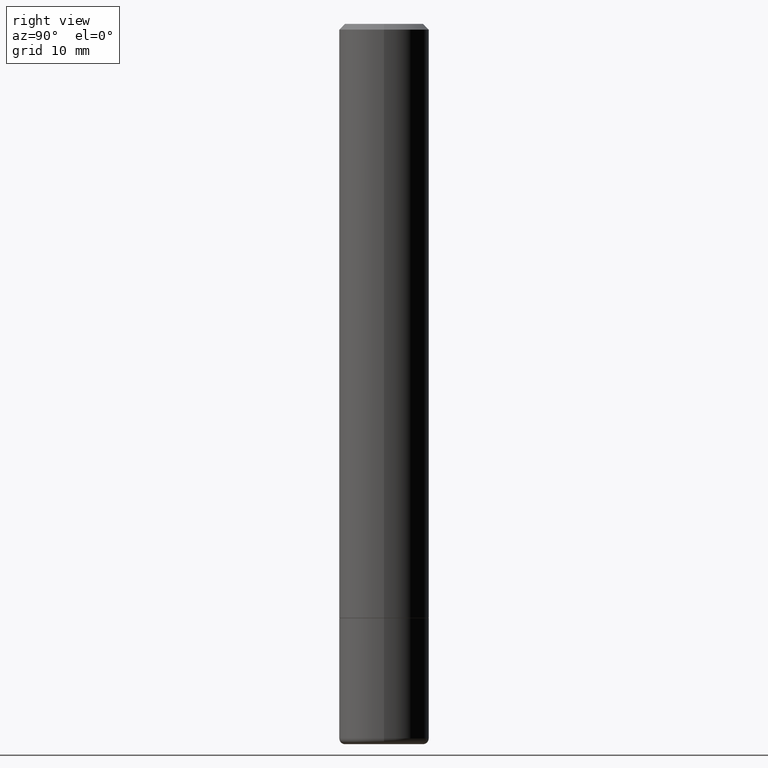
[diagram: clean part render]
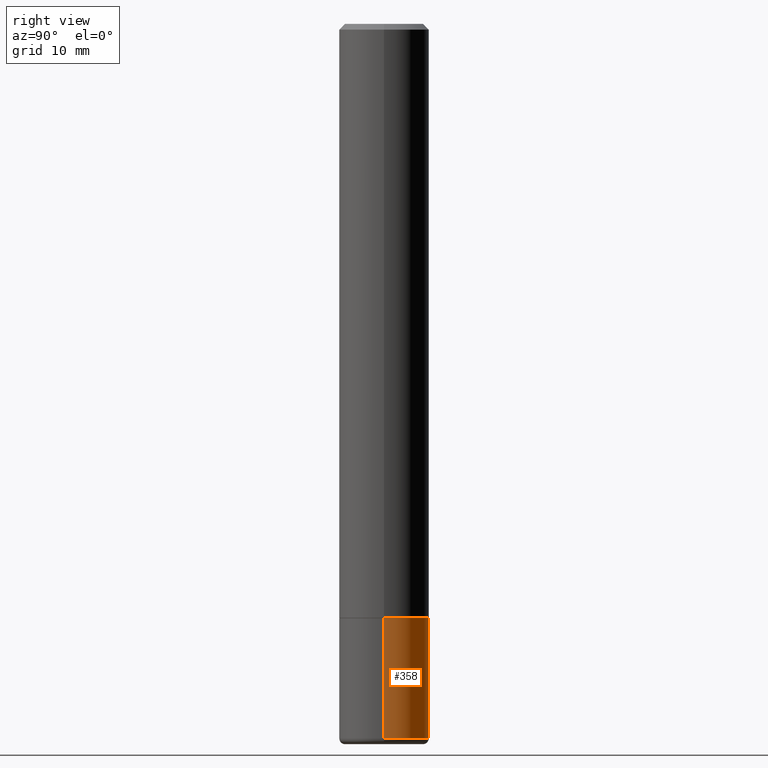
[diagram: same view with one face highlighted and labeled with its STEP entity id]
A machine part, right view. The second image highlights one B-rep face of the part: STEP entity #358.
In plain terms, the highlighted cylindrical surface (partial cylindrical patch) has radius 3.9687 mm, axis along (-0, 0, 1).
Its self-contained STEP definition (entity closure, byte-faithful):
#5 = ORIENTED_EDGE ( 'NONE', *, *, #136, .F. ) ;
#11 = VERTEX_POINT ( 'NONE', #47 ) ;
#44 = ORIENTED_EDGE ( 'NONE', *, *, #258, .F. ) ;
#47 = CARTESIAN_POINT ( 'NONE',  ( 0.1562499999999996392, -8.292268179752465385E-15, -2.062500000000000000 ) ) ;
#65 = DIRECTION ( 'NONE',  ( -2.445468806185136877E-29, 3.491481338843145188E-15, 1.000000000000000000 ) ) ;
#77 = CARTESIAN_POINT ( 'NONE',  ( -0.1562499999999996392, -6.819805295671450729E-15, -2.062500000000000000 ) ) ;
#81 = DIRECTION ( 'NONE',  ( 1.000000000000000000, -6.982962677686267499E-15, 4.876176775795936914E-29 ) ) ;
#84 = EDGE_CURVE ( 'NONE', #183, #317, #363, .T. ) ;
#95 = VERTEX_POINT ( 'NONE', #253 ) ;
#100 = EDGE_LOOP ( 'NONE', ( #244, #353, #5, #44 ) ) ;
#112 = CIRCLE ( 'NONE', #174, 0.1562499999999996392 ) ;
#118 = EDGE_CURVE ( 'NONE', #95, #183, #221, .T. ) ;
#121 = DIRECTION ( 'NONE',  ( -2.445468806185136597E-29, 3.491481338843145583E-15, 1.000000000000000000 ) ) ;
#136 = EDGE_CURVE ( 'NONE', #11, #317, #112, .T. ) ;
#141 = CARTESIAN_POINT ( 'NONE',  ( -0.1562499999999995282, -6.819805295671450729E-15, -2.480000761538716958 ) ) ;
#153 = CARTESIAN_POINT ( 'NONE',  ( 0.000000000000000000, 0.000000000000000000, 0.000000000000000000 ) ) ;
#174 = AXIS2_PLACEMENT_3D ( 'NONE', #251, #246, #290 ) ;
#183 = VERTEX_POINT ( 'NONE', #141 ) ;
#187 = FACE_OUTER_BOUND ( 'NONE', #100, .T. ) ;
#211 = DIRECTION ( 'NONE',  ( 1.000000000000000000, -6.982962677686265133E-15, 0.000000000000000000 ) ) ;
#221 = CIRCLE ( 'NONE', #291, 0.1562499999999995282 ) ;
#244 = ORIENTED_EDGE ( 'NONE', *, *, #118, .T. ) ;
#246 = DIRECTION ( 'NONE',  ( -2.445468806185136597E-29, 3.491481338843145583E-15, 1.000000000000000000 ) ) ;
#248 = VECTOR ( 'NONE', #65, 39.37007874015748143 ) ;
#251 = CARTESIAN_POINT ( 'NONE',  ( 5.043779412756844791E-29, -7.201180261363988578E-15, -2.062500000000000000 ) ) ;
#253 = CARTESIAN_POINT ( 'NONE',  ( 0.1562499999999995282, -9.749964297617694879E-15, -2.480000761538716958 ) ) ;
#258 = EDGE_CURVE ( 'NONE', #95, #11, #369, .T. ) ;
#290 = DIRECTION ( 'NONE',  ( 1.000000000000000000, -6.982962677686266711E-15, 0.000000000000000000 ) ) ;
#291 = AXIS2_PLACEMENT_3D ( 'NONE', #368, #474, #211 ) ;
#297 = AXIS2_PLACEMENT_3D ( 'NONE', #153, #121, #81 ) ;
#317 = VERTEX_POINT ( 'NONE', #77 ) ;
#331 = CARTESIAN_POINT ( 'NONE',  ( -0.1562499999999995837, 1.110223024625153582E-15, -7.685836078523270140E-30 ) ) ;
#338 = CYLINDRICAL_SURFACE ( 'NONE', #297, 0.1562499999999995837 ) ;
#353 = ORIENTED_EDGE ( 'NONE', *, *, #84, .T. ) ;
#358 = ADVANCED_FACE ( 'NONE', ( #187 ), #338, .T. ) ;
#363 = LINE ( 'NONE', #331, #248 ) ;
#368 = CARTESIAN_POINT ( 'NONE',  ( 6.064764501658314522E-29, -8.658876379229219650E-15, -2.480000761538716958 ) ) ;
#369 = LINE ( 'NONE', #414, #473 ) ;
#414 = CARTESIAN_POINT ( 'NONE',  ( 0.1562499999999995837, -1.091087918388476413E-15, 7.619026212181130759E-30 ) ) ;
#473 = VECTOR ( 'NONE', #482, 39.37007874015748143 ) ;
#474 = DIRECTION ( 'NONE',  ( -2.445468806185136597E-29, 3.491481338843145583E-15, 1.000000000000000000 ) ) ;
#482 = DIRECTION ( 'NONE',  ( -2.445468806185136877E-29, 3.491481338843145188E-15, 1.000000000000000000 ) ) ;